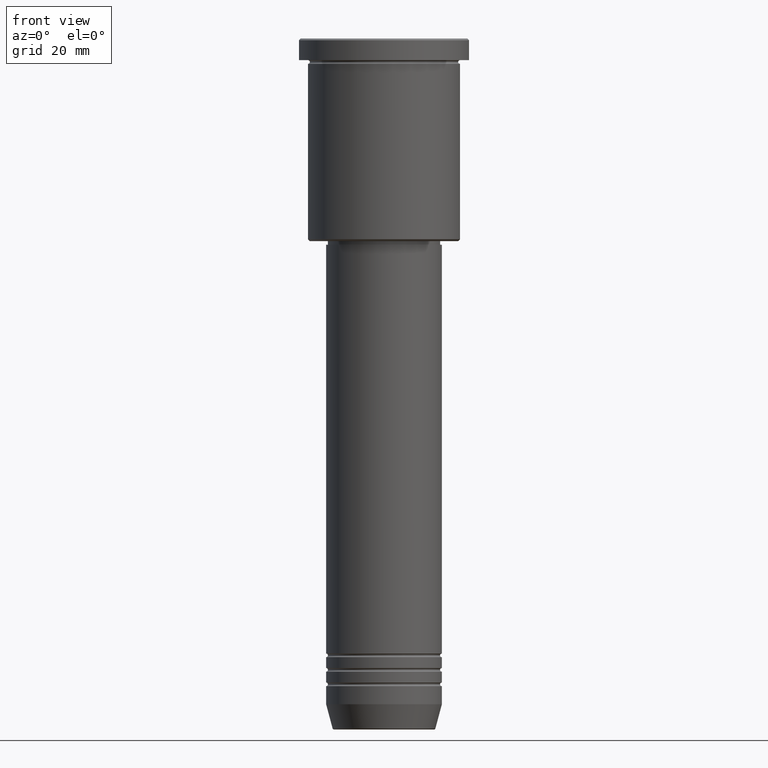
[diagram: clean part render]
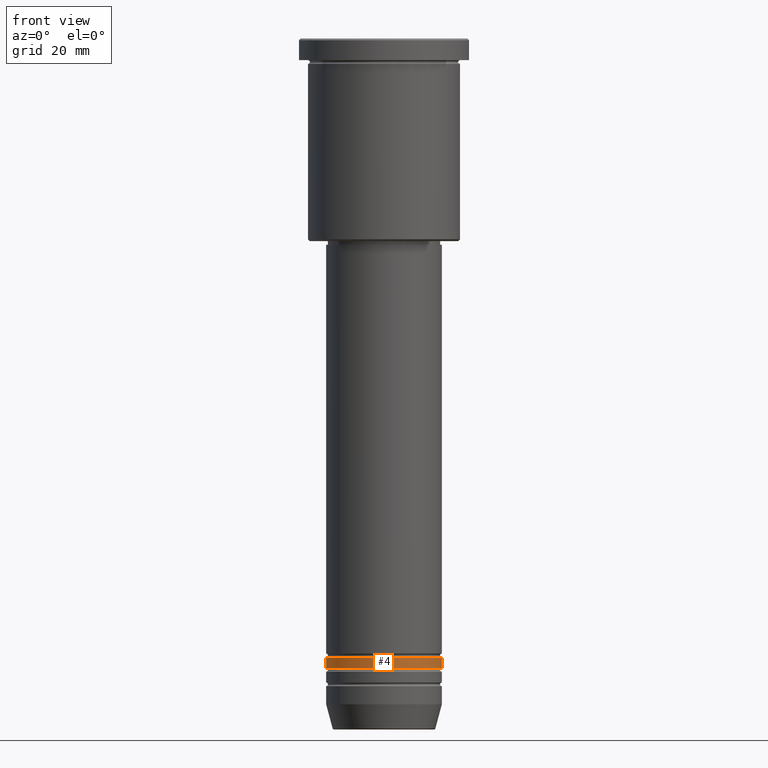
[diagram: same view with one face highlighted and labeled with its STEP entity id]
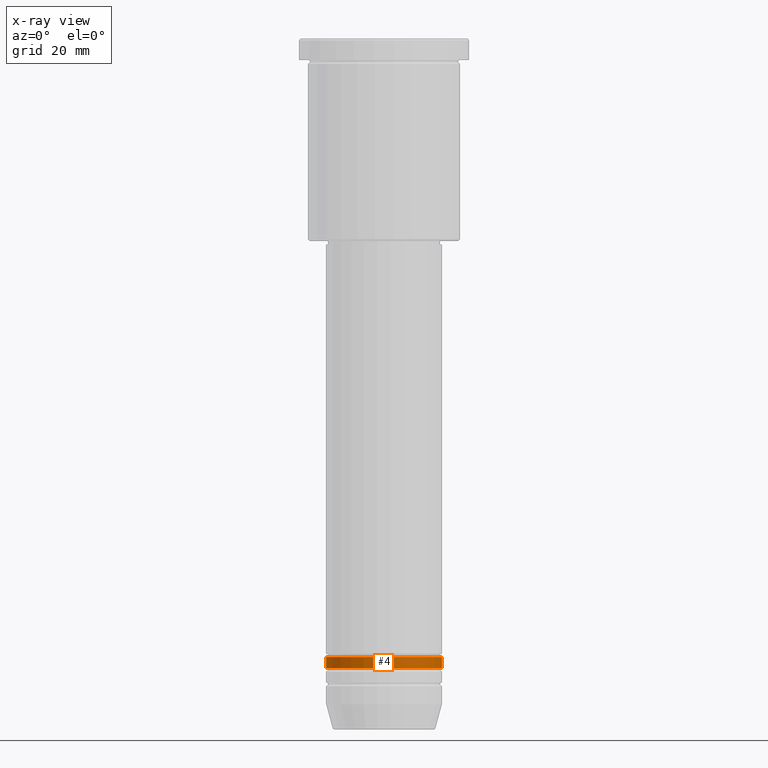
[diagram: x-ray of the same camera — body ghosted, the highlighted face saturated]
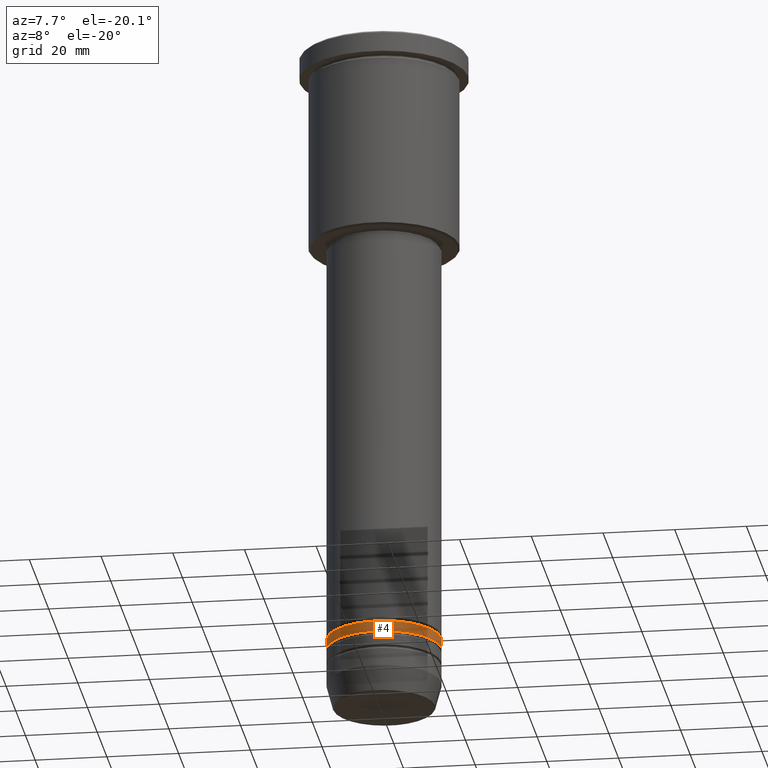
[diagram: same view with one face highlighted and labeled with its STEP entity id]
A machine part, front view. The second image highlights one B-rep face of the part: STEP entity #4.
The next image is the same camera in x-ray: the body ghosted, the highlighted face saturated — about 0% of this face is hidden behind the body in this view.
A second angle (auxiliary view) of the same face is appended — the face is thin or edge-on in the first view.
In plain terms, the highlighted cylindrical surface (partial cylindrical patch) has radius 16 mm, axis along (-0, -0, 1).
Its self-contained STEP definition (entity closure, byte-faithful):
#4 = ADVANCED_FACE ( 'NONE', ( #867 ), #1152, .T. ) ;
#22 = DIRECTION ( 'NONE',  ( -0.000000000000000000, -0.000000000000000000, 1.000000000000000000 ) ) ;
#50 = CARTESIAN_POINT ( 'NONE',  ( 16.00000000000000355, 0.000000000000000000, -173.9999999999999432 ) ) ;
#65 = AXIS2_PLACEMENT_3D ( 'NONE', #319, #701, #510 ) ;
#74 = EDGE_LOOP ( 'NONE', ( #1178, #110, #1009, #838 ) ) ;
#90 = LINE ( 'NONE', #452, #324 ) ;
#110 = ORIENTED_EDGE ( 'NONE', *, *, #1069, .T. ) ;
#159 = AXIS2_PLACEMENT_3D ( 'NONE', #547, #1174, #730 ) ;
#195 = LINE ( 'NONE', #757, #365 ) ;
#231 = EDGE_CURVE ( 'NONE', #341, #691, #195, .T. ) ;
#296 = CARTESIAN_POINT ( 'NONE',  ( -16.00000000000000355, 1.959434878635765526E-15, -173.9999999999999432 ) ) ;
#318 = CARTESIAN_POINT ( 'NONE',  ( 16.00000000000000000, 0.000000000000000000, -170.9999999999999147 ) ) ;
#319 = CARTESIAN_POINT ( 'NONE',  ( 0.000000000000000000, 0.000000000000000000, 0.000000000000000000 ) ) ;
#324 = VECTOR ( 'NONE', #641, 1000.000000000000000 ) ;
#341 = VERTEX_POINT ( 'NONE', #296 ) ;
#365 = VECTOR ( 'NONE', #22, 1000.000000000000000 ) ;
#417 = EDGE_CURVE ( 'NONE', #691, #475, #1012, .T. ) ;
#419 = CARTESIAN_POINT ( 'NONE',  ( -16.00000000000000000, 1.959434878635765131E-15, -170.9999999999999147 ) ) ;
#420 = CIRCLE ( 'NONE', #159, 16.00000000000000355 ) ;
#452 = CARTESIAN_POINT ( 'NONE',  ( 16.00000000000000000, 0.000000000000000000, 0.000000000000000000 ) ) ;
#475 = VERTEX_POINT ( 'NONE', #318 ) ;
#510 = DIRECTION ( 'NONE',  ( 1.000000000000000000, 0.000000000000000000, 0.000000000000000000 ) ) ;
#516 = CARTESIAN_POINT ( 'NONE',  ( 0.000000000000000000, 0.000000000000000000, -170.9999999999999147 ) ) ;
#547 = CARTESIAN_POINT ( 'NONE',  ( 0.000000000000000000, 0.000000000000000000, -173.9999999999999432 ) ) ;
#641 = DIRECTION ( 'NONE',  ( -0.000000000000000000, -0.000000000000000000, 1.000000000000000000 ) ) ;
#691 = VERTEX_POINT ( 'NONE', #419 ) ;
#701 = DIRECTION ( 'NONE',  ( -0.000000000000000000, -0.000000000000000000, 1.000000000000000000 ) ) ;
#730 = DIRECTION ( 'NONE',  ( 1.000000000000000000, 0.000000000000000000, 0.000000000000000000 ) ) ;
#753 = VERTEX_POINT ( 'NONE', #50 ) ;
#757 = CARTESIAN_POINT ( 'NONE',  ( -16.00000000000000000, 1.959434878635765131E-15, 0.000000000000000000 ) ) ;
#829 = EDGE_CURVE ( 'NONE', #753, #475, #90, .T. ) ;
#838 = ORIENTED_EDGE ( 'NONE', *, *, #417, .F. ) ;
#867 = FACE_OUTER_BOUND ( 'NONE', #74, .T. ) ;
#870 = DIRECTION ( 'NONE',  ( -0.000000000000000000, -0.000000000000000000, 1.000000000000000000 ) ) ;
#948 = DIRECTION ( 'NONE',  ( 1.000000000000000000, 0.000000000000000000, 0.000000000000000000 ) ) ;
#968 = AXIS2_PLACEMENT_3D ( 'NONE', #516, #870, #948 ) ;
#1009 = ORIENTED_EDGE ( 'NONE', *, *, #829, .T. ) ;
#1012 = CIRCLE ( 'NONE', #968, 16.00000000000000000 ) ;
#1069 = EDGE_CURVE ( 'NONE', #341, #753, #420, .T. ) ;
#1152 = CYLINDRICAL_SURFACE ( 'NONE', #65, 16.00000000000000000 ) ;
#1174 = DIRECTION ( 'NONE',  ( -0.000000000000000000, -0.000000000000000000, 1.000000000000000000 ) ) ;
#1178 = ORIENTED_EDGE ( 'NONE', *, *, #231, .F. ) ;